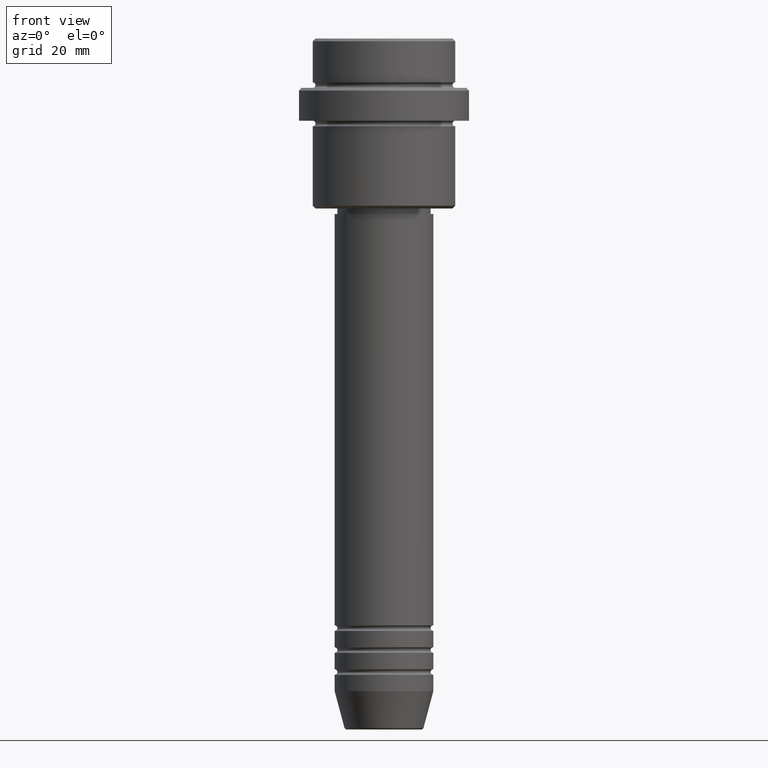
[diagram: clean part render]
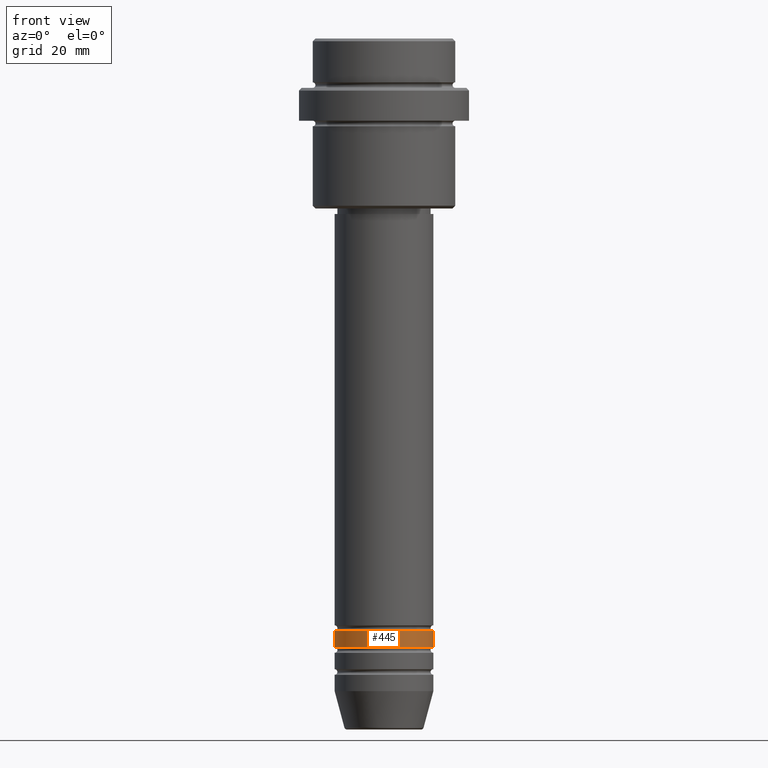
[diagram: same view with one face highlighted and labeled with its STEP entity id]
A machine part, front view. The second image highlights one B-rep face of the part: STEP entity #445.
In plain terms, the highlighted cylindrical surface (partial cylindrical patch) has radius 9 mm, axis along (-0, -0, 1).
Its self-contained STEP definition (entity closure, byte-faithful):
#5 = CARTESIAN_POINT ( 'NONE',  ( -9.000000000000000000, 1.102182119232617714E-15, -110.9999999999998721 ) ) ;
#13 = DIRECTION ( 'NONE',  ( -0.000000000000000000, -0.000000000000000000, 1.000000000000000000 ) ) ;
#79 = DIRECTION ( 'NONE',  ( -0.000000000000000000, -0.000000000000000000, 1.000000000000000000 ) ) ;
#90 = ORIENTED_EDGE ( 'NONE', *, *, #112, .T. ) ;
#112 = EDGE_CURVE ( 'NONE', #396, #162, #194, .T. ) ;
#159 = EDGE_CURVE ( 'NONE', #217, #396, #655, .T. ) ;
#162 = VERTEX_POINT ( 'NONE', #259 ) ;
#172 = ORIENTED_EDGE ( 'NONE', *, *, #159, .T. ) ;
#177 = VECTOR ( 'NONE', #1412, 1000.000000000000000 ) ;
#194 = LINE ( 'NONE', #206, #177 ) ;
#206 = CARTESIAN_POINT ( 'NONE',  ( 9.000000000000000000, 0.000000000000000000, 0.000000000000000000 ) ) ;
#217 = VERTEX_POINT ( 'NONE', #5 ) ;
#259 = CARTESIAN_POINT ( 'NONE',  ( 9.000000000000000000, 0.000000000000000000, -107.9999999999998721 ) ) ;
#264 = LINE ( 'NONE', #1013, #1154 ) ;
#288 = CARTESIAN_POINT ( 'NONE',  ( 9.000000000000000000, 0.000000000000000000, -110.9999999999998721 ) ) ;
#324 = CYLINDRICAL_SURFACE ( 'NONE', #385, 9.000000000000000000 ) ;
#375 = CARTESIAN_POINT ( 'NONE',  ( 0.000000000000000000, 0.000000000000000000, -110.9999999999998721 ) ) ;
#385 = AXIS2_PLACEMENT_3D ( 'NONE', #848, #79, #1162 ) ;
#396 = VERTEX_POINT ( 'NONE', #288 ) ;
#443 = CARTESIAN_POINT ( 'NONE',  ( 0.000000000000000000, 0.000000000000000000, -107.9999999999998721 ) ) ;
#445 = ADVANCED_FACE ( 'NONE', ( #526 ), #324, .T. ) ;
#473 = ORIENTED_EDGE ( 'NONE', *, *, #831, .F. ) ;
#526 = FACE_OUTER_BOUND ( 'NONE', #690, .T. ) ;
#546 = CIRCLE ( 'NONE', #894, 9.000000000000000000 ) ;
#579 = DIRECTION ( 'NONE',  ( -0.000000000000000000, -0.000000000000000000, 1.000000000000000000 ) ) ;
#645 = EDGE_CURVE ( 'NONE', #1137, #162, #546, .T. ) ;
#655 = CIRCLE ( 'NONE', #723, 9.000000000000000000 ) ;
#690 = EDGE_LOOP ( 'NONE', ( #473, #172, #90, #1044 ) ) ;
#722 = DIRECTION ( 'NONE',  ( -0.000000000000000000, -0.000000000000000000, 1.000000000000000000 ) ) ;
#723 = AXIS2_PLACEMENT_3D ( 'NONE', #375, #579, #1233 ) ;
#831 = EDGE_CURVE ( 'NONE', #217, #1137, #264, .T. ) ;
#848 = CARTESIAN_POINT ( 'NONE',  ( 0.000000000000000000, 0.000000000000000000, 0.000000000000000000 ) ) ;
#890 = DIRECTION ( 'NONE',  ( 1.000000000000000000, 0.000000000000000000, 0.000000000000000000 ) ) ;
#894 = AXIS2_PLACEMENT_3D ( 'NONE', #443, #13, #890 ) ;
#1013 = CARTESIAN_POINT ( 'NONE',  ( -9.000000000000000000, 1.102182119232617714E-15, 0.000000000000000000 ) ) ;
#1044 = ORIENTED_EDGE ( 'NONE', *, *, #645, .F. ) ;
#1137 = VERTEX_POINT ( 'NONE', #1236 ) ;
#1154 = VECTOR ( 'NONE', #722, 1000.000000000000000 ) ;
#1162 = DIRECTION ( 'NONE',  ( 1.000000000000000000, 0.000000000000000000, 0.000000000000000000 ) ) ;
#1233 = DIRECTION ( 'NONE',  ( 1.000000000000000000, 0.000000000000000000, 0.000000000000000000 ) ) ;
#1236 = CARTESIAN_POINT ( 'NONE',  ( -9.000000000000000000, 1.102182119232617714E-15, -107.9999999999998721 ) ) ;
#1412 = DIRECTION ( 'NONE',  ( -0.000000000000000000, -0.000000000000000000, 1.000000000000000000 ) ) ;